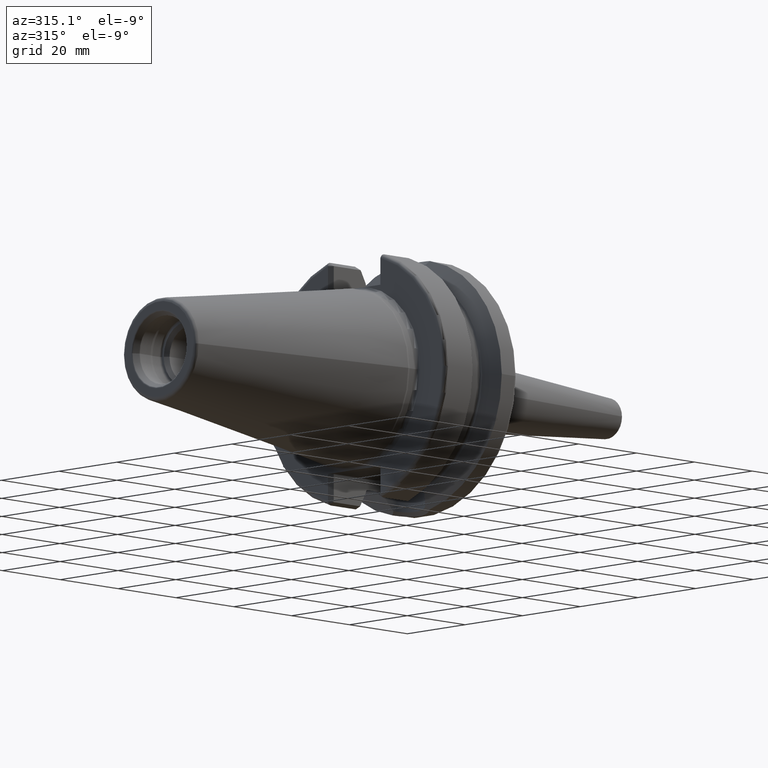
[diagram: clean part render]
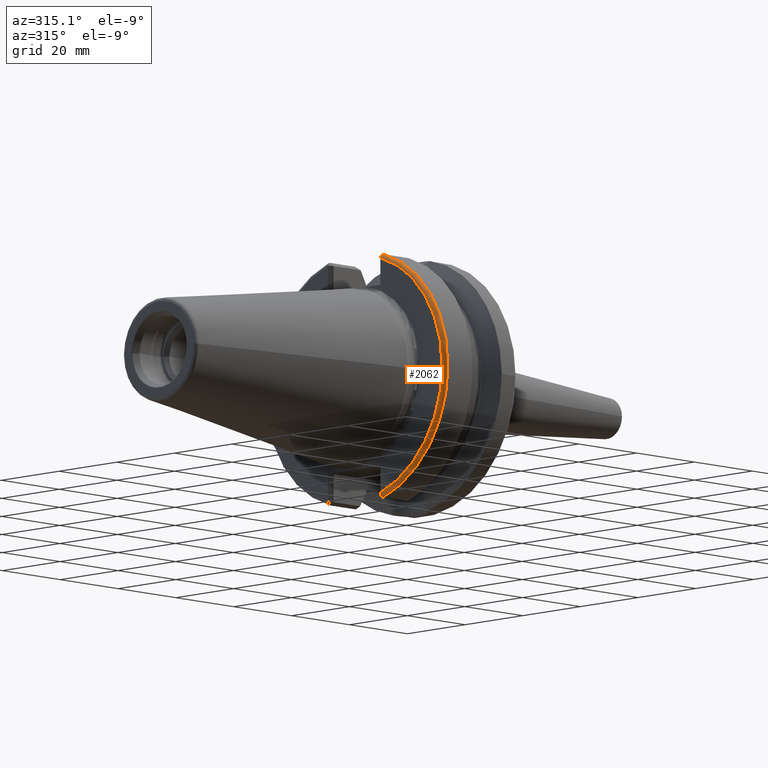
[diagram: same view with one face highlighted and labeled with its STEP entity id]
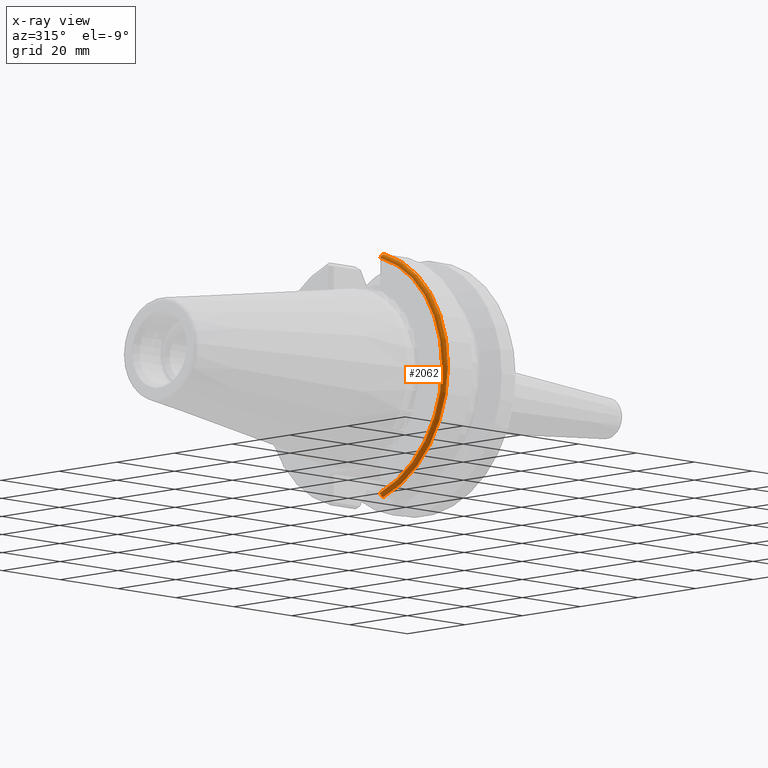
[diagram: x-ray of the same camera — body ghosted, the highlighted face saturated]
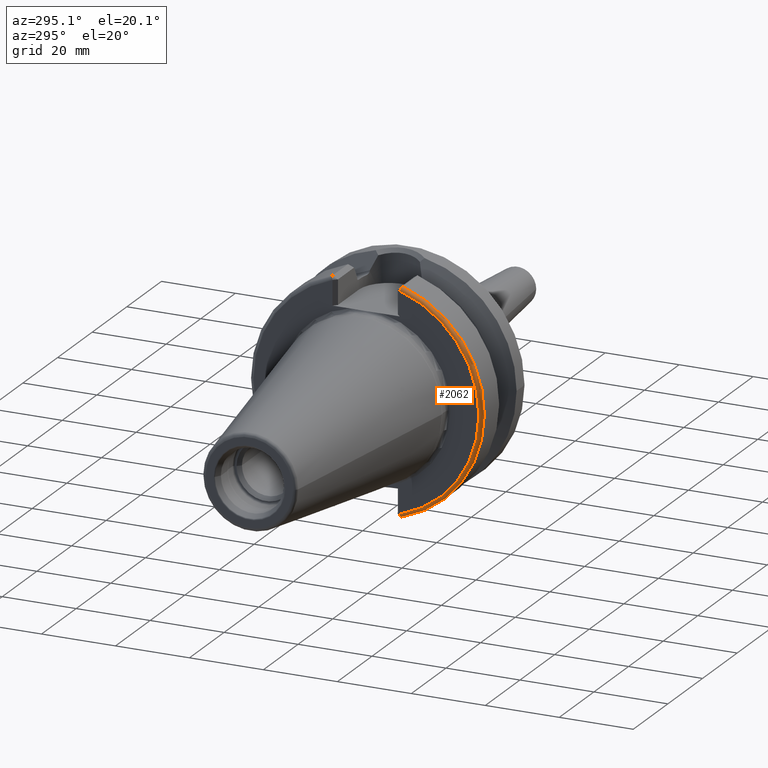
[diagram: same view with one face highlighted and labeled with its STEP entity id]
A machine part, auxiliary view. The second image highlights one B-rep face of the part: STEP entity #2062.
The next image is the same camera in x-ray: the body ghosted, the highlighted face saturated — about 0% of this face is hidden behind the body in this view.
A second angle (auxiliary view) of the same face is appended — the face is thin or edge-on in the first view.
In plain terms, the highlighted toroidal blend (fillet) surface has major radius 30.4875 mm and minor (blend) radius 1 mm.
Its self-contained STEP definition (entity closure, byte-faithful):
#219=CARTESIAN_POINT('',(3.E0,0.E0,0.E0));
#220=DIRECTION('',(-1.E0,0.E0,0.E0));
#221=DIRECTION('',(0.E0,-2.875039130802E-1,-9.577794631143E-1));
#222=AXIS2_PLACEMENT_3D('',#219,#220,#221);
#597=CARTESIAN_POINT('',(1.999985784732E0,-9.094985783206E0,-2.909928820385E1));
#598=CARTESIAN_POINT('',(1.999985784732E0,-9.095112793048E0,-2.917217137670E1));
#599=CARTESIAN_POINT('',(2.014374036950E0,-9.093739351075E0,-2.932192619110E1));
#600=CARTESIAN_POINT('',(2.087184923784E0,-9.087603638745E0,-2.955183251506E1));
#601=CARTESIAN_POINT('',(2.211396248706E0,-9.078496481978E0,-2.976350519345E1));
#602=CARTESIAN_POINT('',(2.379122961844E0,-9.068290399113E0,-2.993980731602E1));
#603=CARTESIAN_POINT('',(2.577680867074E0,-9.059670739939E0,-3.006831316068E1));
#604=CARTESIAN_POINT('',(2.790930333101E0,-9.053893030365E0,-3.014309601841E1));
#605=CARTESIAN_POINT('',(2.931534903981E0,-9.052812497807E0,-3.015807412629E1));
#606=CARTESIAN_POINT('',(2.999999997734E0,-9.052776400559E0,-3.015808496187E1));
#608=CARTESIAN_POINT('',(2.E0,0.E0,0.E0));
#609=DIRECTION('',(-1.E0,0.E0,0.E0));
#610=DIRECTION('',(0.E0,-2.983190208830E-1,-9.544662182495E-1));
#611=AXIS2_PLACEMENT_3D('',#608,#609,#610);
#613=CARTESIAN_POINT('',(3.E0,-9.095027762304E0,2.909928051092E1));
#614=DIRECTION('',(0.E0,-9.544659454175E-1,-2.983198938025E-1));
#615=DIRECTION('',(0.E0,-2.983198938025E-1,9.544659454175E-1));
#616=AXIS2_PLACEMENT_3D('',#613,#614,#615);
#1334=CARTESIAN_POINT('',(1.999970325294E0,-9.094970317901E0,2.909929639904E1));
#1336=VERTEX_POINT('',#1334);
#1338=CARTESIAN_POINT('',(3.E0,-9.393347656107E0,3.005374645633E1));
#1339=VERTEX_POINT('',#1338);
#1359=VERTEX_POINT('',#597);
#1360=VERTEX_POINT('',#606);
#2050=CARTESIAN_POINT('',(3.E0,0.E0,0.E0));
#2051=DIRECTION('',(1.E0,0.E0,0.E0));
#2052=DIRECTION('',(0.E0,-1.E0,0.E0));
#2053=AXIS2_PLACEMENT_3D('',#2050,#2051,#2052);
#2054=TOROIDAL_SURFACE('',#2053,3.04875E1,1.E0);
#2056=ORIENTED_EDGE('',*,*,#2055,.F.);
#2057=ORIENTED_EDGE('',*,*,#1585,.T.);
#2058=ORIENTED_EDGE('',*,*,#2028,.F.);
#2059=ORIENTED_EDGE('',*,*,#1706,.F.);
#2060=EDGE_LOOP('',(#2056,#2057,#2058,#2059));
#2061=FACE_OUTER_BOUND('',#2060,.F.);
#2062=ADVANCED_FACE('',(#2061),#2054,.T.);
#223=CIRCLE('',#222,3.14875E1);
#607=B_SPLINE_CURVE_WITH_KNOTS('',3,(#597,#598,#599,#600,#601,#602,#603,#604,
#605,#606),.UNSPECIFIED.,.F.,.F.,(4,1,1,1,1,1,1,4),(0.E0,1.428571428571E-1,
2.857142857143E-1,4.285714285714E-1,5.714285714286E-1,7.142857142857E-1,
8.571428571429E-1,1.E0),.UNSPECIFIED.);
#612=CIRCLE('',#611,3.04875E1);
#617=CIRCLE('',#616,1.E0);
#1585=EDGE_CURVE('',#1359,#1336,#612,.T.);
#1706=EDGE_CURVE('',#1360,#1339,#223,.T.);
#2028=EDGE_CURVE('',#1339,#1336,#617,.T.);
#2055=EDGE_CURVE('',#1359,#1360,#607,.T.);